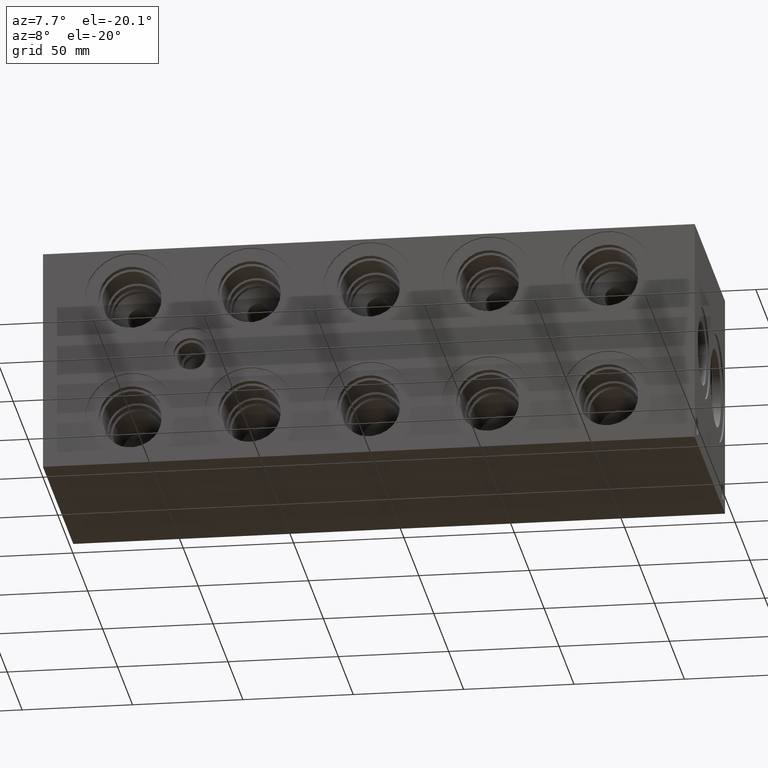
[diagram: clean part render]
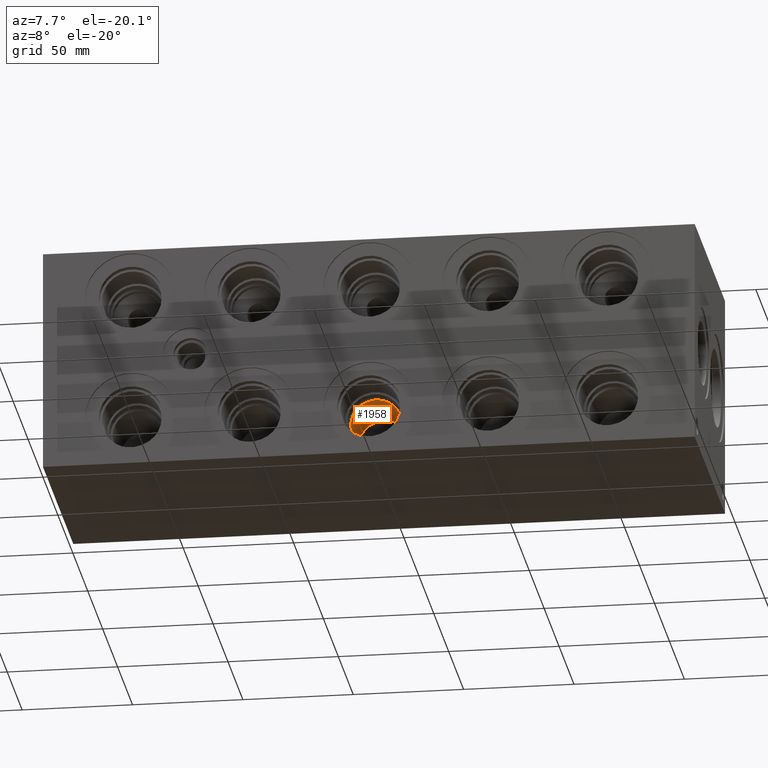
[diagram: same view with one face highlighted and labeled with its STEP entity id]
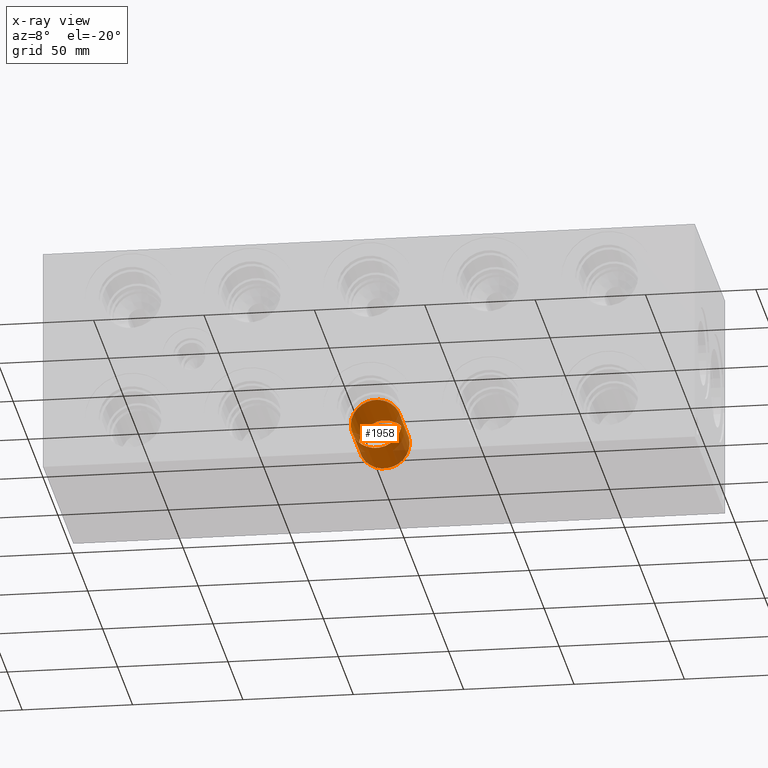
[diagram: x-ray of the same camera — body ghosted, the highlighted face saturated]
A machine part, auxiliary view. The second image highlights one B-rep face of the part: STEP entity #1958.
The next image is the same camera in x-ray: the body ghosted, the highlighted face saturated — about 20% of this face is hidden behind the body in this view.
In plain terms, the highlighted cylindrical surface (bore or boss wall) has radius 11.5062 mm, axis along (0, -1, 0).
Its self-contained STEP definition (entity closure, byte-faithful):
#1927=CARTESIAN_POINT('',(159.131,51.794510799999998,22.225000000000001));
#1928=VERTEX_POINT('',#1927);
#1929=CARTESIAN_POINT('',(147.62479999999999,51.794510799999998,22.225000000000001));
#1930=DIRECTION('',(0.0,-1.0,0.0));
#1931=DIRECTION('',(1.0,0.0,0.0));
#1932=AXIS2_PLACEMENT_3D('',#1929,#1930,#1931);
#1933=CIRCLE('',#1932,11.5062);
#1934=EDGE_CURVE('',#1928,#1928,#1933,.T.);
#1939=CARTESIAN_POINT('',(147.62479999999999,38.222101549999998,22.225000000000001));
#1940=DIRECTION('',(0.0,-1.0,0.0));
#1941=DIRECTION('',(1.0,0.0,0.0));
#1942=AXIS2_PLACEMENT_3D('',#1939,#1940,#1941);
#1943=CYLINDRICAL_SURFACE('',#1942,11.5062);
#1944=CARTESIAN_POINT('',(159.131,24.649692300000005,22.225000000000001));
#1945=VERTEX_POINT('',#1944);
#1946=CARTESIAN_POINT('',(147.62479999999999,24.649692300000005,22.225000000000001));
#1947=DIRECTION('',(0.0,-1.0,0.0));
#1948=DIRECTION('',(1.0,0.0,0.0));
#1949=AXIS2_PLACEMENT_3D('',#1946,#1947,#1948);
#1950=CIRCLE('',#1949,11.5062);
#1951=EDGE_CURVE('',#1945,#1945,#1950,.T.);
#1952=ORIENTED_EDGE('',*,*,#1951,.T.);
#1953=EDGE_LOOP('',(#1952));
#1954=FACE_OUTER_BOUND('',#1953,.T.);
#1955=ORIENTED_EDGE('',*,*,#1934,.F.);
#1956=EDGE_LOOP('',(#1955));
#1957=FACE_BOUND('',#1956,.T.);
#1958=ADVANCED_FACE('',(#1954,#1957),#1943,.F.);